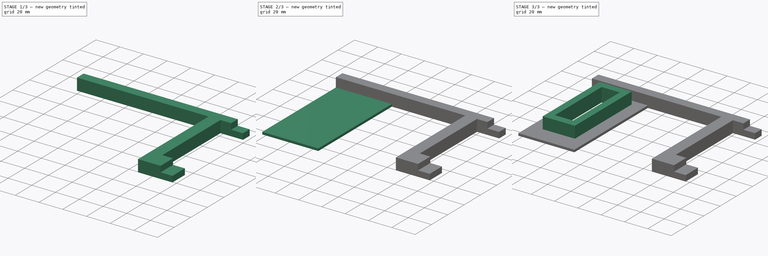
[diagram: build sequence overview — one tinted view per stage of 3, left to right]
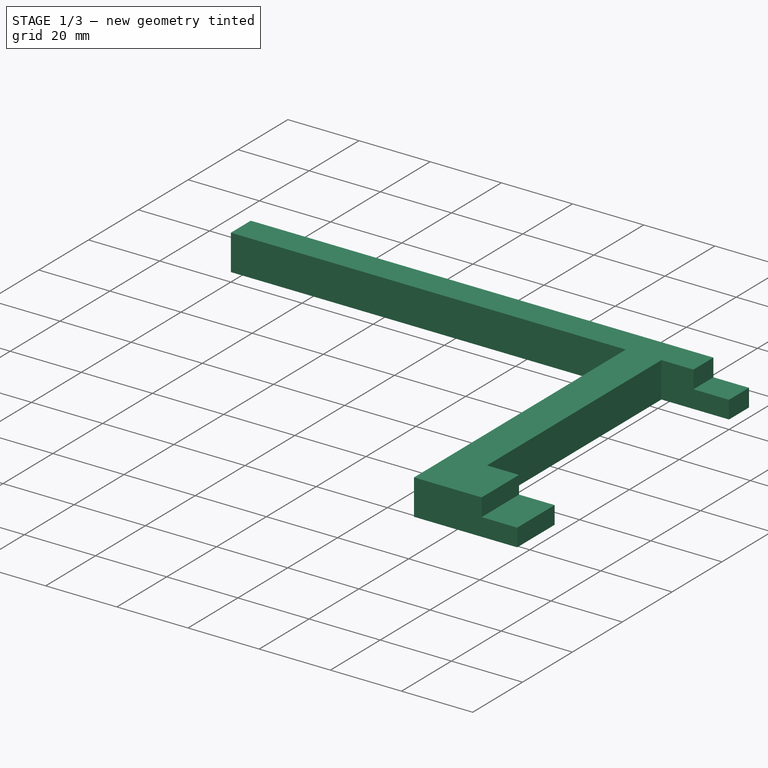
[diagram: stage 1 of 3 — iso view after this stage's code; geometry added in this stage tinted green]
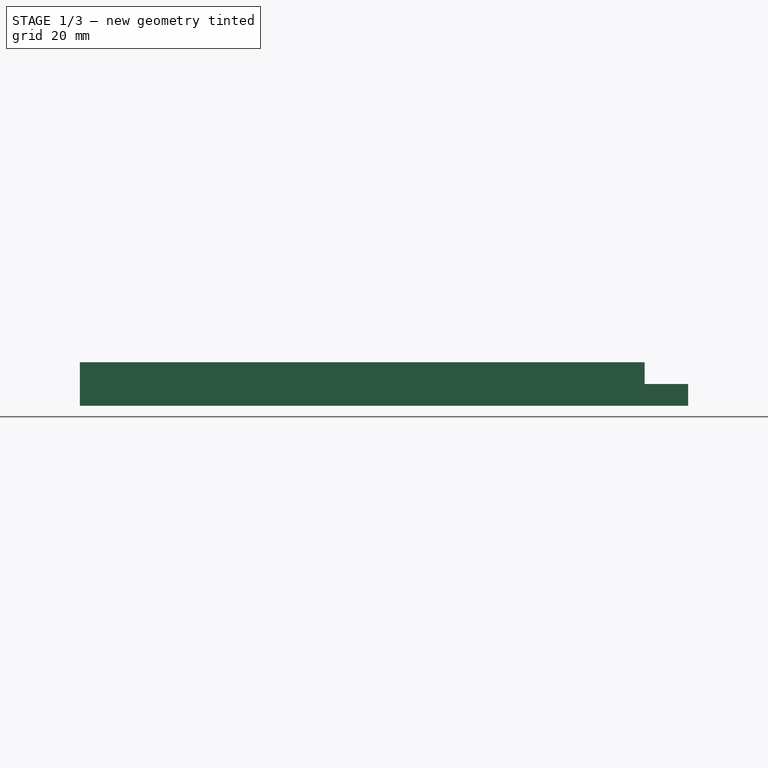
[diagram: stage 1 of 3 — front view after this stage's code; geometry added in this stage tinted green]
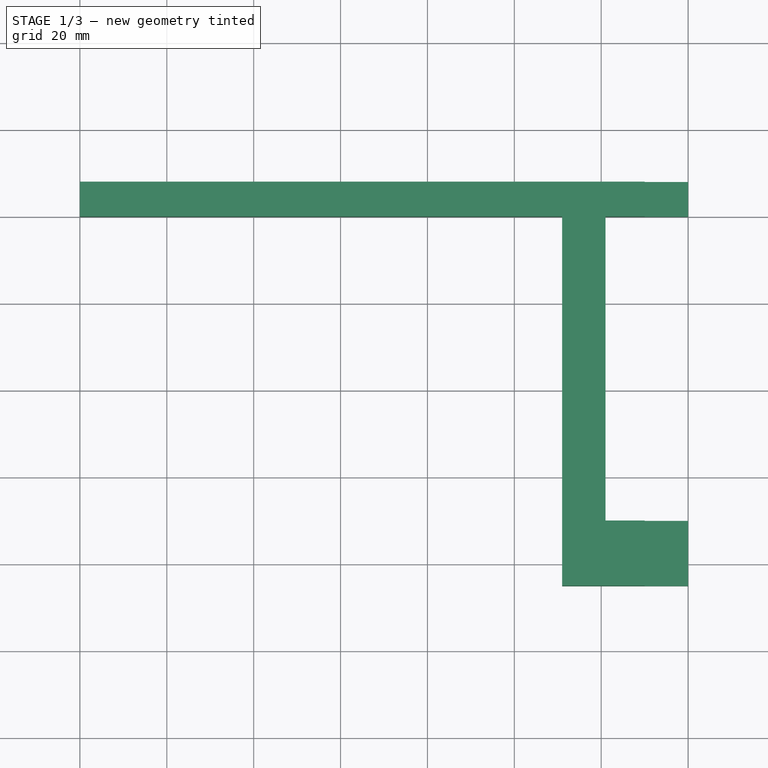
[diagram: stage 1 of 3 — top view after this stage's code; geometry added in this stage tinted green]
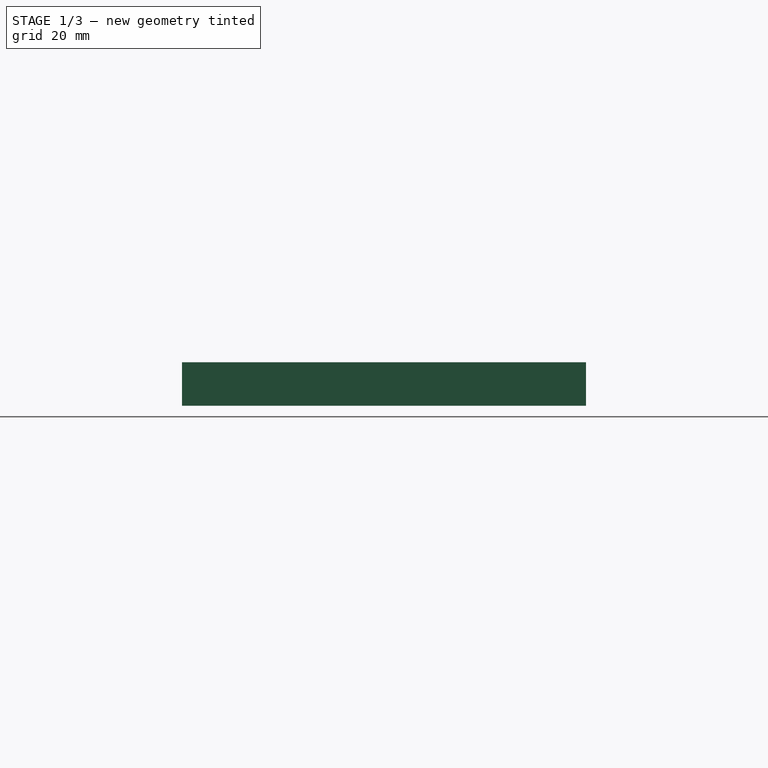
[diagram: stage 1 of 3 — right view after this stage's code; geometry added in this stage tinted green]
FCSTD DOCUMENT  (FreeCAD 0.20R29177 (Git))
Label: SolarPanelSupports_v2
License: All rights reserved
LicenseURL: http://en.wikipedia.org/wiki/All_rights_reserved
objects: Sketcher::SketchObject×5, PartDesign::Pad×3, PartDesign::Pocket×2, PartDesign::Body×2, App::Part×2
note: 17 computed .brp shape members not serialized (recipe doc carries the construction recipe); baked Part::Feature solids carry a one-line shape summary decoded from their .brp

FEATURE [Sketcher::SketchObject] Sketch
  FullyConstrained = true
  MapMode = 5
  Support = -> [XY_Plane001]
  sketch-geometry (12):
    g0: LineSegment StartX=140 StartY=8 StartZ=0 EndX=0 EndY=8 EndZ=0
    g1: LineSegment StartX=2e-16 StartY=8 StartZ=0 EndX=2e-16 EndY=0 EndZ=0
    g2: LineSegment StartX=121 StartY=-85 StartZ=0 EndX=111 EndY=-85 EndZ=0
    g3: LineSegment StartX=111 StartY=-85 StartZ=0 EndX=111 EndY=0 EndZ=0
    g4: LineSegment StartX=2e-16 StartY=0 StartZ=0 EndX=111 EndY=0 EndZ=0
    g5: LineSegment StartX=121 StartY=-85 StartZ=0 EndX=140 EndY=-85 EndZ=0
    g6: LineSegment StartX=140 StartY=-85 StartZ=0 EndX=140 EndY=-70 EndZ=0
    g7: LineSegment StartX=140 StartY=-70 StartZ=0 EndX=121 EndY=-70 EndZ=0
    g8: LineSegment StartX=121 StartY=-70 StartZ=0 EndX=121 EndY=-85 EndZ=0
    g9: LineSegment StartX=121 StartY=-70 StartZ=0 EndX=121 EndY=0 EndZ=0
    g10: LineSegment StartX=121 StartY=0 StartZ=0 EndX=140 EndY=0 EndZ=0
    g11: LineSegment StartX=140 StartY=8 StartZ=0 EndX=140 EndY=0 EndZ=0
  constraints (35):
    c: Coincident(g0,g1)
    c: Horizontal(g0)
    c: Vertical(g1)
    c: Coincident(g2,g3)
    c: Horizontal(g2)
    c: Vertical(g3)
    c: DistanceY(g1,g1) = 8
    c: DistanceX(g2,g2) = 10
    c: DistanceX(g0,g0) = 140
    c: Coincident(g4,g1)
    c: Horizontal(g4)
    c: DistanceX(g4,g4) = 111
    c: Coincident(g-1,g1)
    c: DistanceY(g3,g3) = 85
    c: Coincident(g5,g6)
    c: Coincident(g6,g7)
    c: Coincident(g7,g8)
    c: Coincident(g8,g5)
    c: Horizontal(g7)
    c: Vertical(g6)
    c: Vertical(g8)
    c: DistanceY(g6,g6) = 15
    c: Coincident(g9,g7)
    c: Vertical(g9)
    c: Coincident(g2,g5)
    c: Vertical(g7,g10)
    c: DistanceX(g2,g5) = 29
    c: Coincident(g10,g9)
    c: Horizontal(g9,g3)
    c: Coincident(g3,g4)
    c: Horizontal(g10)
    c: Horizontal(g5)
    c: Coincident(g11,g10)
    c: Vertical(g11)
    c: Coincident(g11,g0)
FEATURE [PartDesign::Pad] Pad
  Direction = (0,0,1)
  Length = 10
  Length2 = 10
  Profile = -> Sketch
  ReferenceAxis = -> Sketch [N_Axis]
  Type = 0
FEATURE [PartDesign::Body] Body001
  Group = -> [Sketch003,Pad001,Sketch004,Pad002,Sketch005,Pocket001]
  Origin = -> Origin003
  Tip = -> Pocket001
FEATURE [App::Part] Part001  label="RearSupportCenterFill"
  Group = -> [Body001]
  Origin = -> Origin002
FEATURE [PartDesign::Pocket] Pocket
  BaseFeature = -> Pad
  Direction = (0,0,-1)
  Length = 5
  Length2 = 5
  Profile = -> Sketch002
  ReferenceAxis = -> Sketch002 [N_Axis]
  Type = 0
FEATURE [PartDesign::Body] Body
  Group = -> [Sketch,Pad,Sketch002,Pocket]
  Origin = -> Origin001
  Tip = -> Pocket
FEATURE [App::Part] Part  label="SolarPanelRearSupport"
  Group = -> [Body]
  Origin = -> Origin
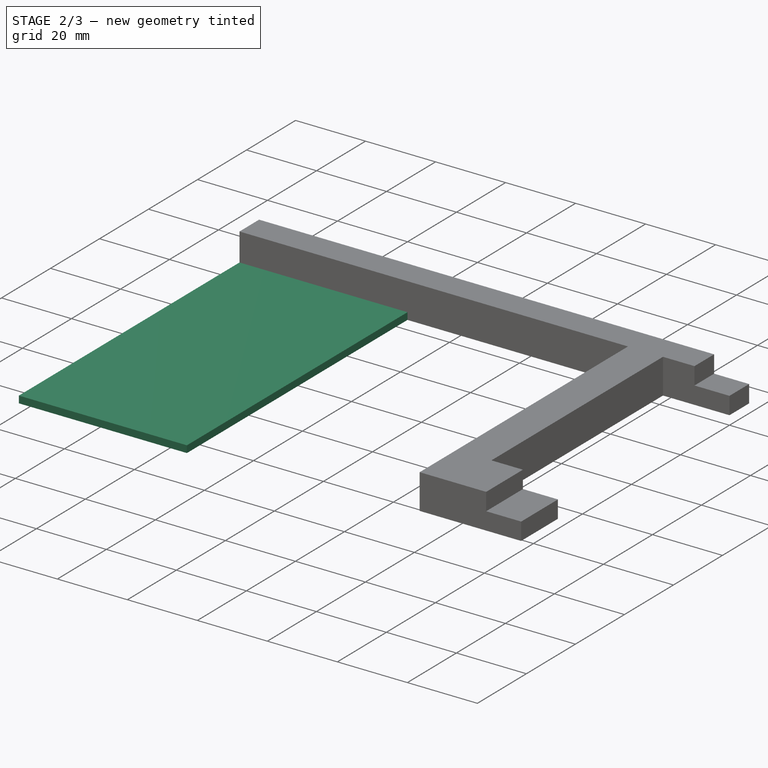
[diagram: stage 2 of 3 — iso view after this stage's code; geometry added in this stage tinted green]
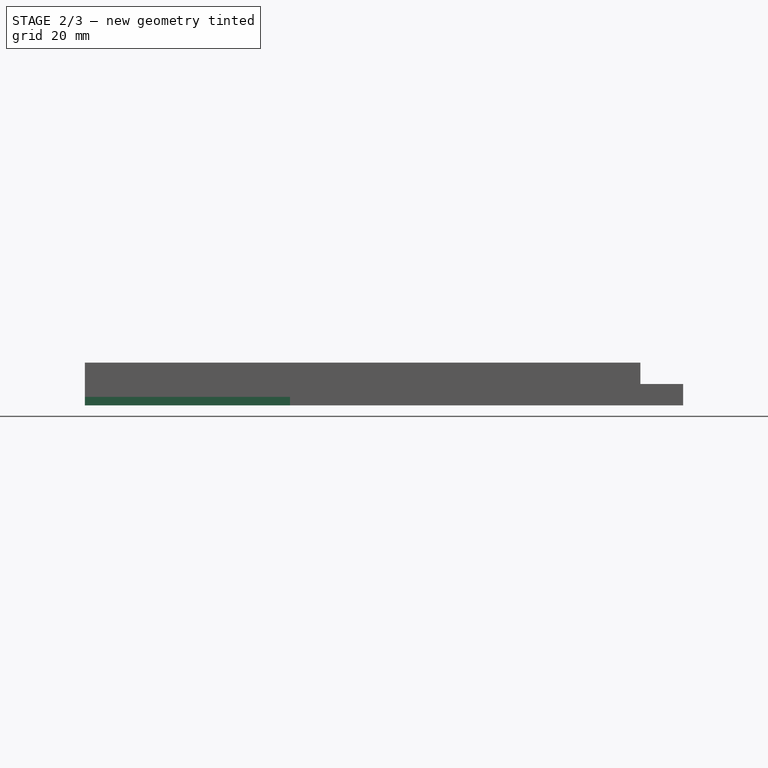
[diagram: stage 2 of 3 — front view after this stage's code; geometry added in this stage tinted green]
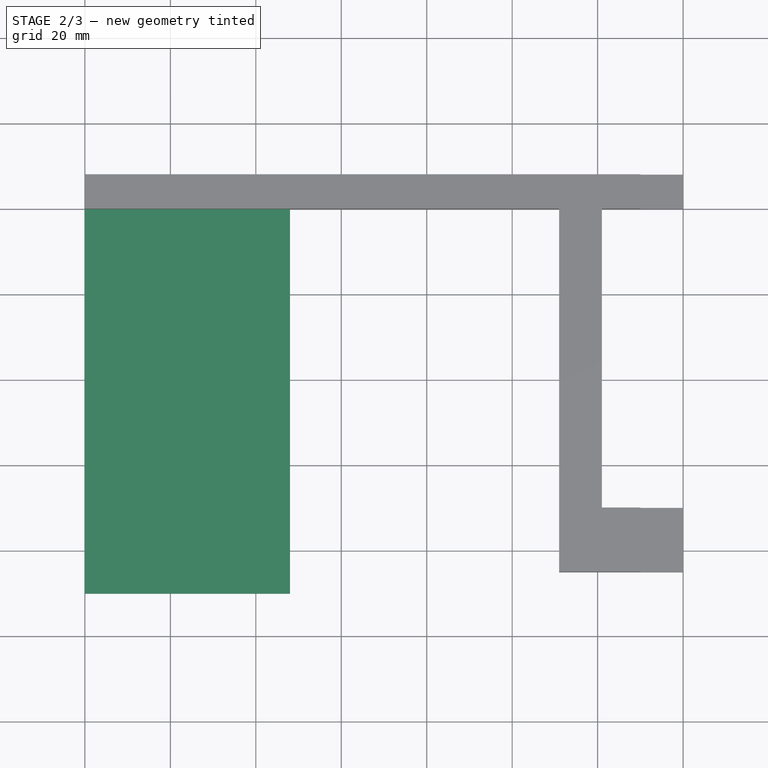
[diagram: stage 2 of 3 — top view after this stage's code; geometry added in this stage tinted green]
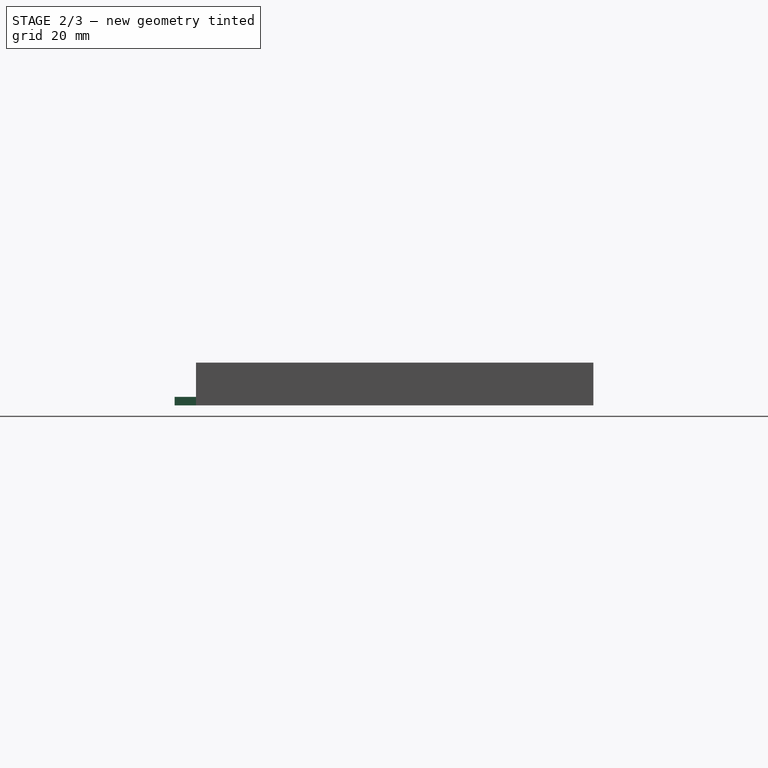
[diagram: stage 2 of 3 — right view after this stage's code; geometry added in this stage tinted green]
FEATURE [Sketcher::SketchObject] Sketch002
  ExternalGeometry = -> [Pad]
  FullyConstrained = true
  MapMode = 5
  Placement = pos=(0,0,10) rot=(0,0,1;0rad)
  Support = -> [Pad]
  sketch-geometry (4):
    g0: LineSegment StartX=140 StartY=8 StartZ=0 EndX=130 EndY=8 EndZ=0
    g1: LineSegment StartX=130 StartY=8 StartZ=0 EndX=130 EndY=-85 EndZ=0
    g2: LineSegment StartX=130 StartY=-85 StartZ=0 EndX=140 EndY=-85 EndZ=0
    g3: LineSegment StartX=140 StartY=-85 StartZ=0 EndX=140 EndY=8 EndZ=0
  constraints (10):
    c: Coincident(g0,g1)
    c: Horizontal(g0)
    c: Vertical(g1)
    c: DistanceX(g2,g2) = 10
    c: Coincident(g0,g-4)
    c: Coincident(g0,g3)
    c: PointOnObject(g1,g-5)
    c: Coincident(g2,g1)
    c: Coincident(g2,g3)
    c: Coincident(g-5,g2)
FEATURE [Sketcher::SketchObject] Sketch003
  FullyConstrained = true
  MapMode = 5
  Support = -> [XY_Plane003]
  sketch-geometry (4):
    g0: LineSegment StartX=0 StartY=0 StartZ=0 EndX=48 EndY=0 EndZ=0
    g1: LineSegment StartX=48 StartY=0 StartZ=0 EndX=48 EndY=-90 EndZ=0
    g2: LineSegment StartX=48 StartY=-90 StartZ=0 EndX=0 EndY=-90 EndZ=0
    g3: LineSegment StartX=0 StartY=-90 StartZ=0 EndX=0 EndY=0 EndZ=0
  constraints (11):
    c: Coincident(g0,g1)
    c: Coincident(g1,g2)
    c: Coincident(g2,g3)
    c: Coincident(g3,g0)
    c: Horizontal(g0)
    c: Horizontal(g2)
    c: Vertical(g1)
    c: Vertical(g3)
    c: Coincident(g0,g-1)
    c: DistanceX(g2,g2) = 48
    c: DistanceY(g3,g3) = 90
FEATURE [PartDesign::Pad] Pad001
  Direction = (0,0,1)
  Length = 2
  Length2 = 10
  Profile = -> Sketch003
  ReferenceAxis = -> Sketch003 [N_Axis]
  Type = 0
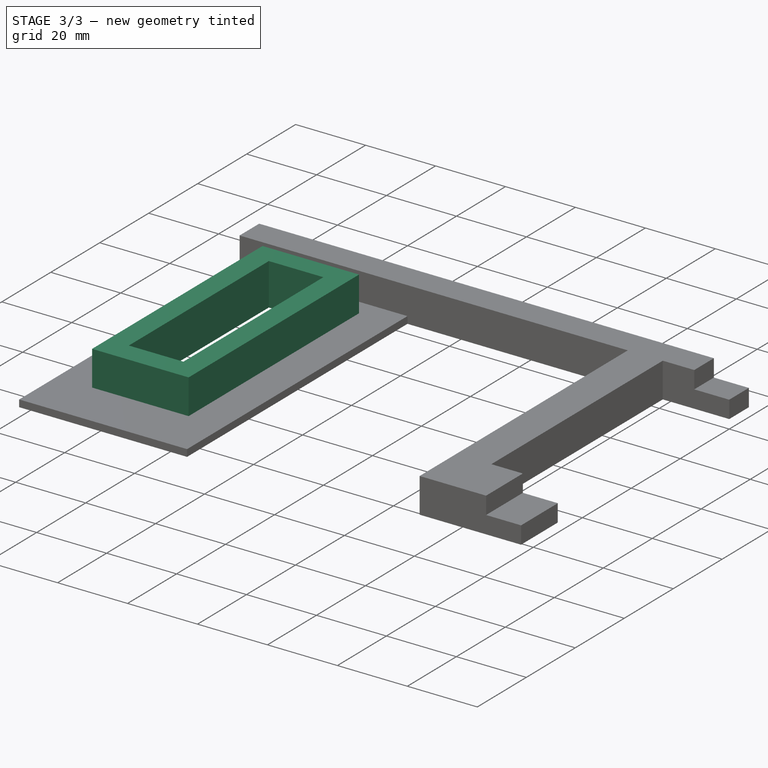
[diagram: stage 3 of 3 — iso view after this stage's code; geometry added in this stage tinted green]
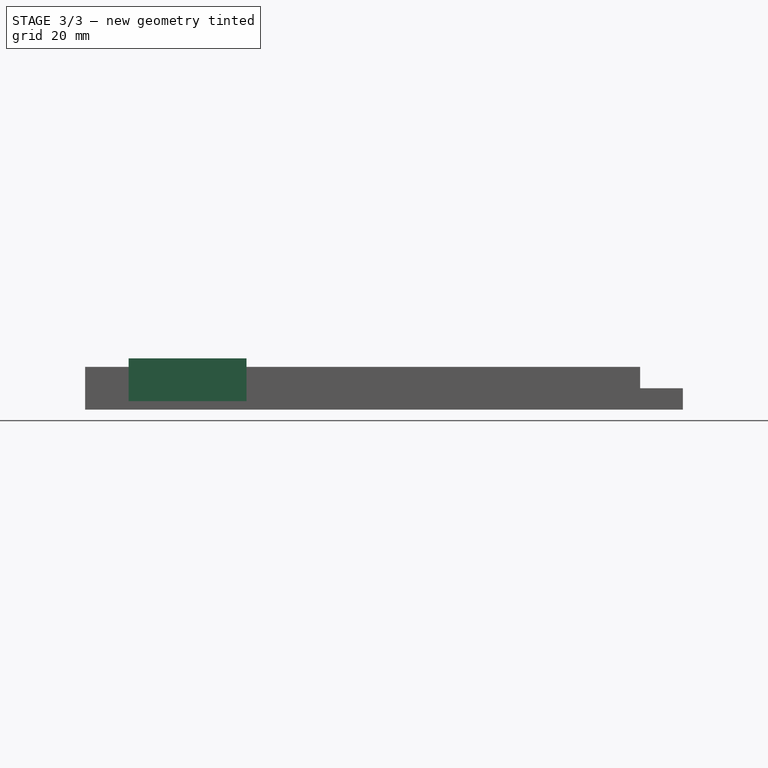
[diagram: stage 3 of 3 — front view after this stage's code; geometry added in this stage tinted green]
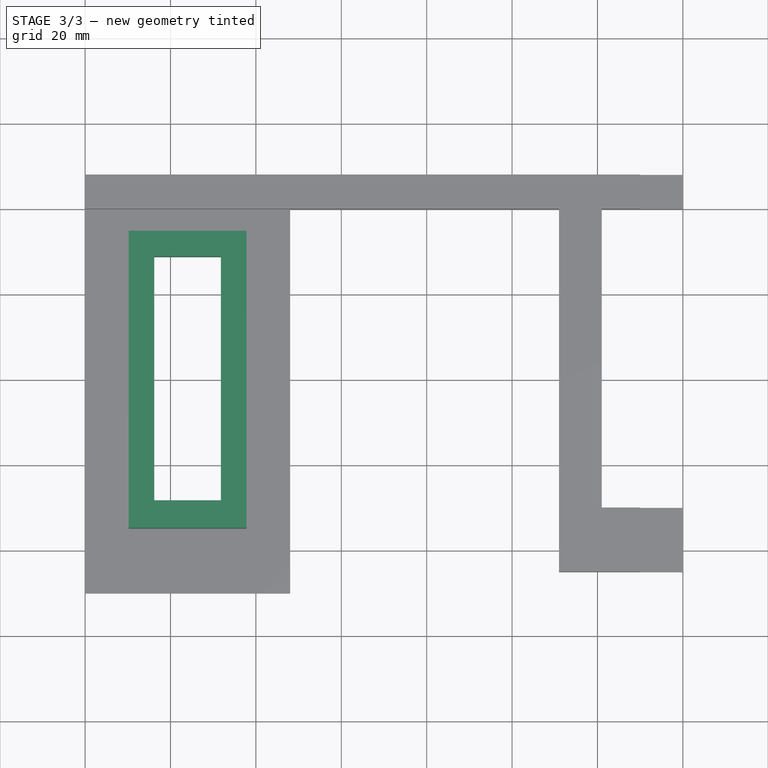
[diagram: stage 3 of 3 — top view after this stage's code; geometry added in this stage tinted green]
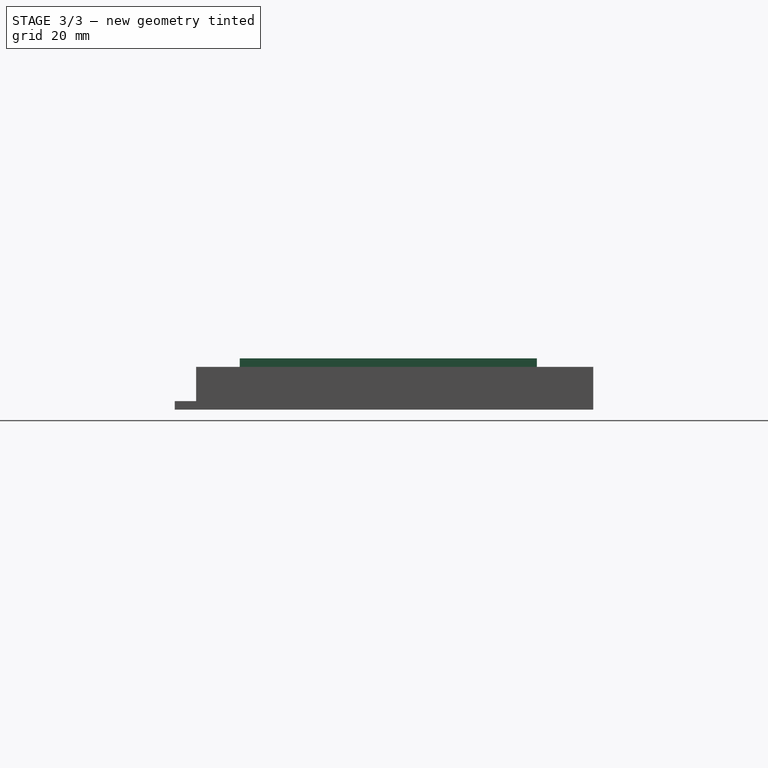
[diagram: stage 3 of 3 — right view after this stage's code; geometry added in this stage tinted green]
FEATURE [Sketcher::SketchObject] Sketch004
  ExternalGeometry = -> [Pad001]
  FullyConstrained = true
  MapMode = 5
  Placement = pos=(0,0,2) rot=(0,0,1;0rad)
  Support = -> [Pad001]
  sketch-geometry (4):
    g0: LineSegment StartX=10.2 StartY=-5.2 StartZ=0 EndX=37.8 EndY=-5.2 EndZ=0
    g1: LineSegment StartX=37.8 StartY=-5.2 StartZ=0 EndX=37.8 EndY=-74.8 EndZ=0
    g2: LineSegment StartX=37.8 StartY=-74.8 StartZ=0 EndX=10.2 EndY=-74.8 EndZ=0
    g3: LineSegment StartX=10.2 StartY=-74.8 StartZ=0 EndX=10.2 EndY=-5.2 EndZ=0
  constraints (12):
    c: Coincident(g0,g1)
    c: Coincident(g1,g2)
    c: Coincident(g2,g3)
    c: Coincident(g3,g0)
    c: Horizontal(g0)
    c: Horizontal(g2)
    c: Vertical(g1)
    c: Vertical(g3)
    c: DistanceX(g1,g-3) = 10.2
    c: DistanceX(g-1,g0) = 10.2
    c: DistanceY(g-3,g1) = 15.2
    c: DistanceY(g0,g-3) = 5.2
FEATURE [PartDesign::Pad] Pad002
  BaseFeature = -> Pad001
  Direction = (0,0,1)
  Length = 10
  Length2 = 10
  Profile = -> Sketch004
  ReferenceAxis = -> Sketch004 [N_Axis]
  Type = 0
FEATURE [Sketcher::SketchObject] Sketch005
  ExternalGeometry = -> [Pad002]
  FullyConstrained = false
  MapMode = 5
  Placement = pos=(0,0,12) rot=(0,0,1;0rad)
  Support = -> [Pad002]
  sketch-geometry (7):
    g0: LineSegment StartX=16.2 StartY=-11.2 StartZ=0 EndX=31.8 EndY=-11.2 EndZ=0
    g1: LineSegment StartX=31.8 StartY=-11.2 StartZ=0 EndX=31.8 EndY=-68.3501 EndZ=0
    g2: LineSegment StartX=31.8 StartY=-68.3501 StartZ=0 EndX=16.2 EndY=-68.3501 EndZ=0
    g3: LineSegment StartX=16.2 StartY=-68.3501 StartZ=0 EndX=16.2 EndY=-11.2 EndZ=0
    g4: LineSegment StartX=16.2 StartY=-11.2 StartZ=0 EndX=16.2 EndY=-5.2 EndZ=0
    g5: LineSegment StartX=16.2 StartY=-68.3501 StartZ=0 EndX=10.2 EndY=-68.3501 EndZ=0
    g6: LineSegment StartX=31.8 StartY=-68.3501 StartZ=0 EndX=37.8 EndY=-68.3501 EndZ=0
  constraints (20):
    c: Coincident(g0,g1)
    c: Coincident(g1,g2)
    c: Coincident(g2,g3)
    c: Coincident(g3,g0)
    c: Horizontal(g0)
    c: Horizontal(g2)
    c: Vertical(g1)
    c: Vertical(g3)
    c: Coincident(g4,g0)
    c: PointOnObject(g4,g-3)
    c: Vertical(g4)
    c: Coincident(g5,g2)
    c: Horizontal(g5)
    c: Coincident(g6,g1)
    c: Vertical(g-4,g6)
    c: Vertical(g5,g-4)
    c: Horizontal(g6)
    c: Equal(g6,g5)
    c: Equal(g4,g5)
    c: DistanceY(g4,g4) = 6
FEATURE [PartDesign::Pocket] Pocket001
  BaseFeature = -> Pad002
  Direction = (0,0,-1)
  Length = 15
  Length2 = 5
  Profile = -> Sketch005
  ReferenceAxis = -> Sketch005 [N_Axis]
  Type = 0
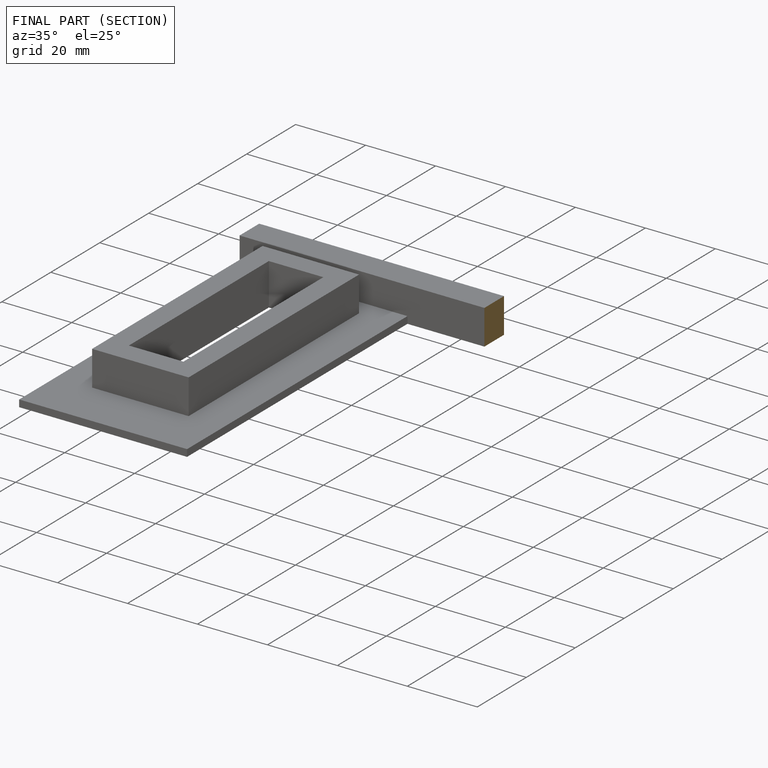
[diagram: finished part — half-section view (interior)]
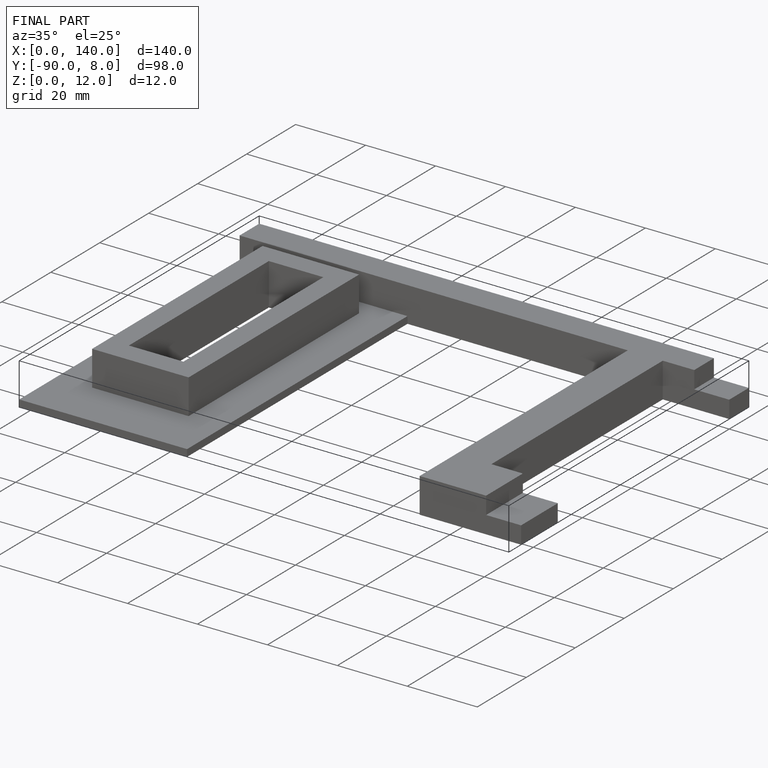
[diagram: finished part — iso view with bounding-box wireframe]
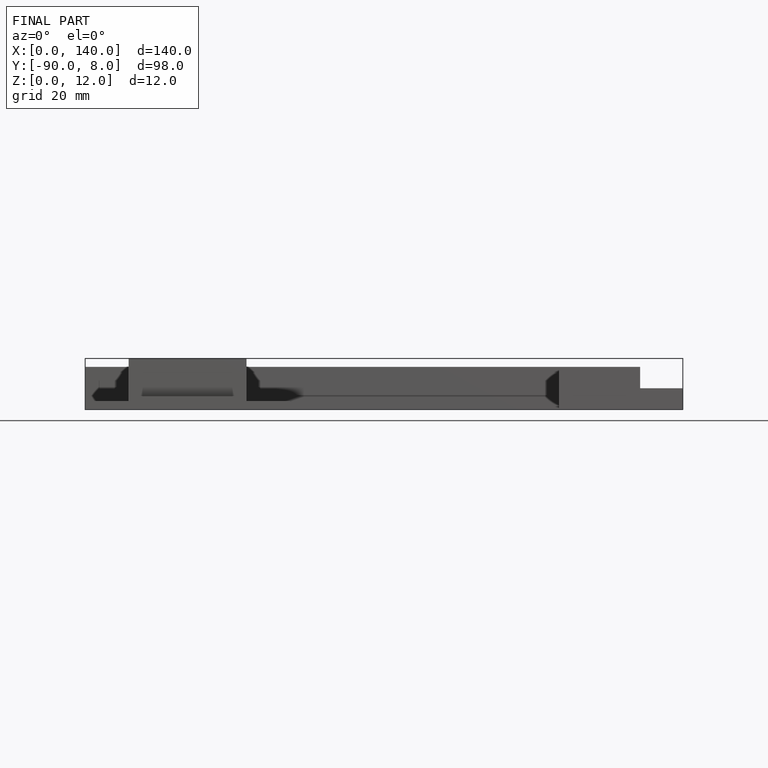
[diagram: finished part — front view with bounding-box wireframe]
